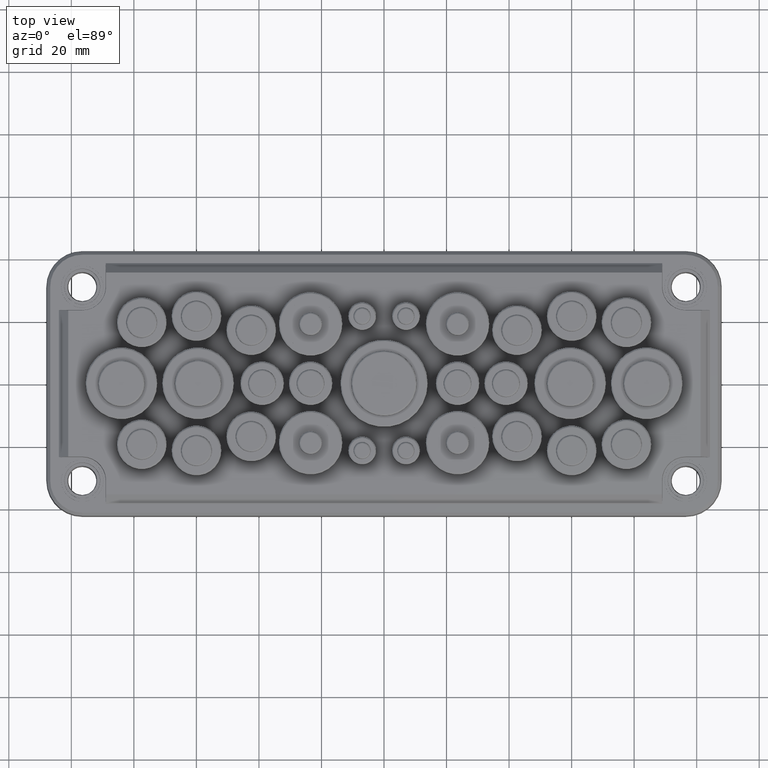
[diagram: clean part render]
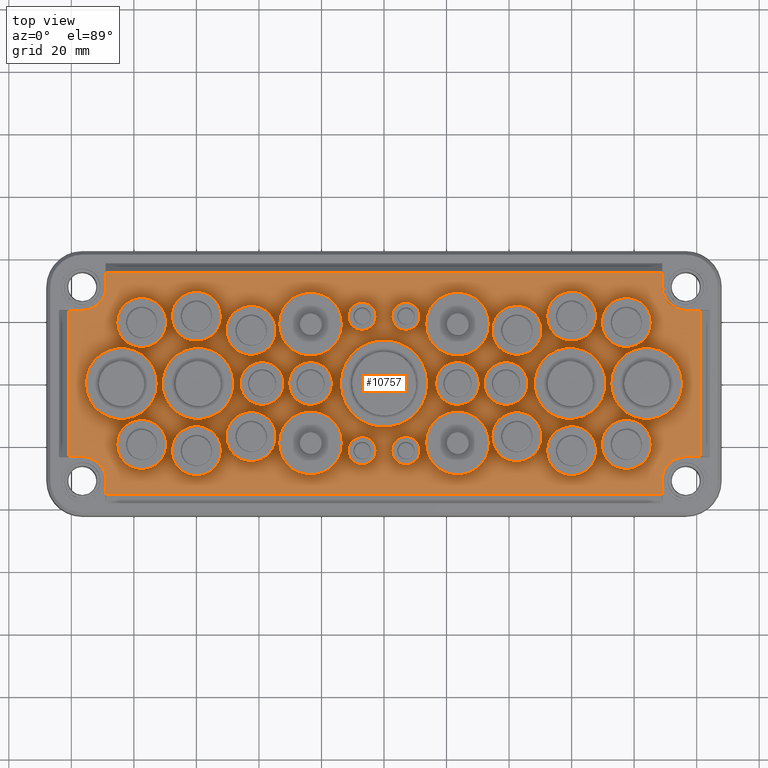
[diagram: same view with one face highlighted and labeled with its STEP entity id]
A machine part, top view. The second image highlights one B-rep face of the part: STEP entity #10757.
In plain terms, the highlighted planar face has unit normal (0, 0, 1).
Its self-contained STEP definition (entity closure, byte-faithful):
#6 = CARTESIAN_POINT ( 'NONE',  ( 85.49999999999998600, -19.50000000000000400, 11.00000000000001100 ) ) ;
#120 = VERTEX_POINT ( 'NONE', #27064 ) ;
#176 = CARTESIAN_POINT ( 'NONE',  ( -2.500000000001279000, 21.50000000000000000, 11.00000000002410200 ) ) ;
#320 = CARTESIAN_POINT ( 'NONE',  ( 88.89523769152477000, -35.49999999999999300, 10.99999999999999600 ) ) ;
#330 = DIRECTION ( 'NONE',  ( -1.000000000000000000, 0.0000000000000000000, 0.0000000000000000000 ) ) ;
#452 = FACE_BOUND ( 'NONE', #22921, .T. ) ;
#455 = DIRECTION ( 'NONE',  ( -1.000000000000000000, 0.0000000000000000000, 0.0000000000000000000 ) ) ;
#505 = EDGE_CURVE ( 'NONE', #41862, #38246, #33028, .T. ) ;
#569 = AXIS2_PLACEMENT_3D ( 'NONE', #26865, #16620, #9666 ) ;
#695 = DIRECTION ( 'NONE',  ( -0.0000000000000000000, -0.0000000000000000000, -1.000000000000000000 ) ) ;
#961 = FACE_BOUND ( 'NONE', #37590, .T. ) ;
#979 = CARTESIAN_POINT ( 'NONE',  ( -33.69999999999999600, 18.99999999999999600, 11.00000000000001100 ) ) ;
#1010 = CARTESIAN_POINT ( 'NONE',  ( -59.99999999999999300, -21.50000000000000400, 11.00000000000001100 ) ) ;
#1024 = CARTESIAN_POINT ( 'NONE',  ( 84.00000000000000000, -3.552713678800500900E-015, 11.00000000000001100 ) ) ;
#1028 = DIRECTION ( 'NONE',  ( -0.0000000000000000000, -0.0000000000000000000, -1.000000000000000000 ) ) ;
#1051 = CARTESIAN_POINT ( 'NONE',  ( -89.00000000000000000, 35.49999999999999300, 11.00000000000000000 ) ) ;
#1083 = VERTEX_POINT ( 'NONE', #29437 ) ;
#1111 = ORIENTED_EDGE ( 'NONE', *, *, #6975, .T. ) ;
#1171 = CIRCLE ( 'NONE', #13528, 7.999999999999992900 ) ;
#1225 = CARTESIAN_POINT ( 'NONE',  ( 52.00000000000002100, -21.50000000000000400, 11.00000000000001100 ) ) ;
#1229 = CARTESIAN_POINT ( 'NONE',  ( -34.49999999999999300, -17.00000000000000400, 11.00000000000001100 ) ) ;
#1353 = ORIENTED_EDGE ( 'NONE', *, *, #10408, .T. ) ;
#1387 = DIRECTION ( 'NONE',  ( -1.000000000000000000, 0.0000000000000000000, 0.0000000000000000000 ) ) ;
#1422 = VERTEX_POINT ( 'NONE', #16751 ) ;
#1536 = FACE_BOUND ( 'NONE', #41769, .T. ) ;
#1559 = DIRECTION ( 'NONE',  ( 0.0000000000000000000, -1.000000000000000000, -0.0000000000000000000 ) ) ;
#1629 = DIRECTION ( 'NONE',  ( -0.0000000000000000000, -0.0000000000000000000, -1.000000000000000000 ) ) ;
#1687 = EDGE_LOOP ( 'NONE', ( #3684, #12026 ) ) ;
#1733 = ORIENTED_EDGE ( 'NONE', *, *, #4140, .T. ) ;
#1772 = DIRECTION ( 'NONE',  ( -1.000000000000000000, 0.0000000000000000000, 0.0000000000000000000 ) ) ;
#1890 = ORIENTED_EDGE ( 'NONE', *, *, #23223, .T. ) ;
#1976 = CARTESIAN_POINT ( 'NONE',  ( 34.50000000000000700, -17.00000000000000400, 11.00000000000001100 ) ) ;
#2088 = CIRCLE ( 'NONE', #36931, 8.000000000000000000 ) ;
#2093 = EDGE_CURVE ( 'NONE', #40856, #41460, #22054, .T. ) ;
#2111 = DIRECTION ( 'NONE',  ( -1.000000000000000000, 0.0000000000000000000, 0.0000000000000000000 ) ) ;
#2196 = DIRECTION ( 'NONE',  ( -0.0000000000000000000, -0.0000000000000000000, -1.000000000000000000 ) ) ;
#2249 = AXIS2_PLACEMENT_3D ( 'NONE', #37717, #6750, #16977 ) ;
#2254 = ORIENTED_EDGE ( 'NONE', *, *, #30531, .T. ) ;
#2279 = DIRECTION ( 'NONE',  ( -1.000000000000000000, 0.0000000000000000000, 0.0000000000000000000 ) ) ;
#2280 = EDGE_LOOP ( 'NONE', ( #1733, #14261 ) ) ;
#2435 = DIRECTION ( 'NONE',  ( -0.0000000000000000000, -0.0000000000000000000, -1.000000000000000000 ) ) ;
#2526 = ORIENTED_EDGE ( 'NONE', *, *, #2093, .T. ) ;
#2575 = CIRCLE ( 'NONE', #31045, 10.20000000000000100 ) ;
#2623 = DIRECTION ( 'NONE',  ( -0.0000000000000000000, -0.0000000000000000000, -1.000000000000000000 ) ) ;
#2636 = FACE_BOUND ( 'NONE', #39481, .T. ) ;
#2832 = EDGE_CURVE ( 'NONE', #4109, #40856, #30184, .T. ) ;
#2852 = DIRECTION ( 'NONE',  ( -0.0000000000000000000, -0.0000000000000000000, -1.000000000000000000 ) ) ;
#2921 = CARTESIAN_POINT ( 'NONE',  ( -89.00000000000000000, 38.49999999999998600, 11.00000000000000000 ) ) ;
#2993 = VERTEX_POINT ( 'NONE', #30492 ) ;
#3039 = DIRECTION ( 'NONE',  ( -1.000000000000000000, 0.0000000000000000000, 0.0000000000000000000 ) ) ;
#3121 = CARTESIAN_POINT ( 'NONE',  ( 33.70000000000001000, 18.99999999999999600, 11.00000000000001100 ) ) ;
#3155 = FACE_BOUND ( 'NONE', #13198, .T. ) ;
#3235 = DIRECTION ( 'NONE',  ( -0.0000000000000000000, -0.0000000000000000000, -1.000000000000000000 ) ) ;
#3260 = DIRECTION ( 'NONE',  ( -0.0000000000000000000, -0.0000000000000000000, -1.000000000000000000 ) ) ;
#3272 = EDGE_CURVE ( 'NONE', #27412, #27673, #41536, .T. ) ;
#3286 = EDGE_CURVE ( 'NONE', #41519, #41449, #37175, .T. ) ;
#3331 = VERTEX_POINT ( 'NONE', #8817 ) ;
#3338 = AXIS2_PLACEMENT_3D ( 'NONE', #7844, #32000, #26050 ) ;
#3383 = CARTESIAN_POINT ( 'NONE',  ( -34.49999999999999300, 16.99999999999999300, 11.00000000000001100 ) ) ;
#3444 = VECTOR ( 'NONE', #25032, 1000.000000000000000 ) ;
#3447 = CARTESIAN_POINT ( 'NONE',  ( -50.49999999999999300, 16.99999999999999300, 11.00000000000001100 ) ) ;
#3489 = EDGE_CURVE ( 'NONE', #34153, #4109, #21399, .T. ) ;
#3504 = CARTESIAN_POINT ( 'NONE',  ( 69.50000000000000000, 19.49999999999999600, 11.00000000000001100 ) ) ;
#3584 = CARTESIAN_POINT ( 'NONE',  ( -6.999999999999992900, 21.50000000000000000, 11.00000000002410200 ) ) ;
#3627 = ORIENTED_EDGE ( 'NONE', *, *, #38011, .T. ) ;
#3646 = ORIENTED_EDGE ( 'NONE', *, *, #31870, .T. ) ;
#3684 = ORIENTED_EDGE ( 'NONE', *, *, #4609, .T. ) ;
#3945 = ORIENTED_EDGE ( 'NONE', *, *, #30386, .T. ) ;
#3984 = AXIS2_PLACEMENT_3D ( 'NONE', #33754, #13062, #37232 ) ;
#4029 = ORIENTED_EDGE ( 'NONE', *, *, #20297, .T. ) ;
#4072 = EDGE_LOOP ( 'NONE', ( #25746, #40636 ) ) ;
#4109 = VERTEX_POINT ( 'NONE', #36473 ) ;
#4123 = DIRECTION ( 'NONE',  ( 1.000000000000000000, 0.0000000000000000000, -0.0000000000000000000 ) ) ;
#4140 = EDGE_CURVE ( 'NONE', #30397, #41780, #17101, .T. ) ;
#4197 = AXIS2_PLACEMENT_3D ( 'NONE', #1024, #18223, #39291 ) ;
#4211 = DIRECTION ( 'NONE',  ( -1.000000000000000000, 0.0000000000000000000, 0.0000000000000000000 ) ) ;
#4228 = FACE_BOUND ( 'NONE', #4072, .T. ) ;
#4304 = CIRCLE ( 'NONE', #29613, 6.999999999999964500 ) ;
#4337 = AXIS2_PLACEMENT_3D ( 'NONE', #39588, #15216, #25768 ) ;
#4510 = ORIENTED_EDGE ( 'NONE', *, *, #39641, .T. ) ;
#4609 = EDGE_CURVE ( 'NONE', #40642, #10333, #34382, .T. ) ;
#4656 = CIRCLE ( 'NONE', #3338, 6.999999999999367600 ) ;
#4715 = CIRCLE ( 'NONE', #37804, 10.20000000000000100 ) ;
#4865 = DIRECTION ( 'NONE',  ( -0.0000000000000000000, -0.0000000000000000000, -1.000000000000000000 ) ) ;
#4872 = ORIENTED_EDGE ( 'NONE', *, *, #39397, .T. ) ;
#4877 = DIRECTION ( 'NONE',  ( -1.000000000000000000, 0.0000000000000000000, 0.0000000000000000000 ) ) ;
#5010 = DIRECTION ( 'NONE',  ( -1.000000000000000000, 0.0000000000000000000, 0.0000000000000000000 ) ) ;
#5076 = VERTEX_POINT ( 'NONE', #6 ) ;
#5091 = CARTESIAN_POINT ( 'NONE',  ( 7.000000000000007100, 21.50000000000000000, 11.00000000002410200 ) ) ;
#5274 = ORIENTED_EDGE ( 'NONE', *, *, #10406, .T. ) ;
#5307 = VERTEX_POINT ( 'NONE', #34191 ) ;
#5345 = AXIS2_PLACEMENT_3D ( 'NONE', #19499, #2623, #19648 ) ;
#5370 = CIRCLE ( 'NONE', #25265, 11.49999999999999600 ) ;
#5675 = DIRECTION ( 'NONE',  ( -1.000000000000000000, 0.0000000000000000000, 0.0000000000000000000 ) ) ;
#5890 = LINE ( 'NONE', #38450, #15611 ) ;
#5987 = ORIENTED_EDGE ( 'NONE', *, *, #29148, .T. ) ;
#6008 = CARTESIAN_POINT ( 'NONE',  ( 23.50000000000000700, -3.552713678800500900E-015, 11.00000000002410200 ) ) ;
#6056 = CIRCLE ( 'NONE', #8099, 7.604762308475246300 ) ;
#6126 = VERTEX_POINT ( 'NONE', #9597 ) ;
#6127 = CARTESIAN_POINT ( 'NONE',  ( 68.00000000000000000, 21.50000000000000000, 11.00000000000001100 ) ) ;
#6137 = EDGE_CURVE ( 'NONE', #39103, #1083, #12589, .T. ) ;
#6138 = ORIENTED_EDGE ( 'NONE', *, *, #20697, .T. ) ;
#6176 = VERTEX_POINT ( 'NONE', #20568 ) ;
#6185 = VERTEX_POINT ( 'NONE', #3121 ) ;
#6194 = CARTESIAN_POINT ( 'NONE',  ( 48.00000000000001400, -3.552713678800500900E-015, 11.00000000000001100 ) ) ;
#6249 = DIRECTION ( 'NONE',  ( -0.0000000000000000000, -0.0000000000000000000, -1.000000000000000000 ) ) ;
#6265 = AXIS2_PLACEMENT_3D ( 'NONE', #22557, #11890, #12354 ) ;
#6425 = FACE_BOUND ( 'NONE', #2280, .T. ) ;
#6457 = DIRECTION ( 'NONE',  ( -1.000000000000000000, 0.0000000000000000000, 0.0000000000000000000 ) ) ;
#6583 = ORIENTED_EDGE ( 'NONE', *, *, #31582, .T. ) ;
#6713 = CIRCLE ( 'NONE', #14415, 7.999999999999992900 ) ;
#6720 = DIRECTION ( 'NONE',  ( -1.000000000000000000, 0.0000000000000000000, 0.0000000000000000000 ) ) ;
#6750 = DIRECTION ( 'NONE',  ( -0.0000000000000000000, -0.0000000000000000000, -1.000000000000000000 ) ) ;
#6804 = EDGE_LOOP ( 'NONE', ( #32018, #1353, #4029, #1890, #13049, #42379, #29006, #29974, #39607, #6857, #32208, #2526, #21432, #39735, #17111, #15931 ) ) ;
#6857 = ORIENTED_EDGE ( 'NONE', *, *, #3489, .T. ) ;
#6975 = EDGE_CURVE ( 'NONE', #8512, #22687, #13672, .T. ) ;
#7048 = CIRCLE ( 'NONE', #21129, 11.49999999999999600 ) ;
#7137 = CARTESIAN_POINT ( 'NONE',  ( -33.69999999999999600, -19.00000000000000400, 11.00000000000001100 ) ) ;
#7264 = CARTESIAN_POINT ( 'NONE',  ( -67.99999999999998600, -21.50000000000000400, 11.00000000000001100 ) ) ;
#7292 = ORIENTED_EDGE ( 'NONE', *, *, #40023, .T. ) ;
#7322 = ORIENTED_EDGE ( 'NONE', *, *, #17288, .T. ) ;
#7372 = CIRCLE ( 'NONE', #22025, 11.49999999999999600 ) ;
#7424 = CARTESIAN_POINT ( 'NONE',  ( -48.00000000000000000, -2.144369859781045100E-015, 11.00000000000001100 ) ) ;
#7717 = EDGE_LOOP ( 'NONE', ( #44445, #44183 ) ) ;
#7844 = CARTESIAN_POINT ( 'NONE',  ( 39.00000000000000700, -3.552713678800500900E-015, 11.00000000002410200 ) ) ;
#7879 = DIRECTION ( 'NONE',  ( -1.000000000000000000, -0.0000000000000000000, 0.0000000000000000000 ) ) ;
#7883 = CARTESIAN_POINT ( 'NONE',  ( 101.2793661559339400, 23.39523769152475600, 11.00000000000000500 ) ) ;
#7904 = VERTEX_POINT ( 'NONE', #42635 ) ;
#7914 = VERTEX_POINT ( 'NONE', #176 ) ;
#7961 = CIRCLE ( 'NONE', #36775, 7.999999999999992900 ) ;
#7978 = CIRCLE ( 'NONE', #35453, 7.999999999999992900 ) ;
#7983 = EDGE_CURVE ( 'NONE', #38072, #15402, #25445, .T. ) ;
#8003 = DIRECTION ( 'NONE',  ( -0.0000000000000000000, -0.0000000000000000000, -1.000000000000000000 ) ) ;
#8012 = FACE_BOUND ( 'NONE', #23615, .T. ) ;
#8099 = AXIS2_PLACEMENT_3D ( 'NONE', #21634, #18047, #34991 ) ;
#8310 = EDGE_CURVE ( 'NONE', #6126, #23392, #6056, .T. ) ;
#8315 = CARTESIAN_POINT ( 'NONE',  ( -23.49999999999999300, -3.552713678800500900E-015, 11.00000000002410200 ) ) ;
#8357 = VECTOR ( 'NONE', #7879, 1000.000000000000000 ) ;
#8373 = CIRCLE ( 'NONE', #35423, 7.604762308475246300 ) ;
#8449 = DIRECTION ( 'NONE',  ( -1.000000000000000000, 0.0000000000000000000, 0.0000000000000000000 ) ) ;
#8512 = VERTEX_POINT ( 'NONE', #35476 ) ;
#8529 = DIRECTION ( 'NONE',  ( -0.0000000000000000000, -0.0000000000000000000, -1.000000000000000000 ) ) ;
#8648 = CARTESIAN_POINT ( 'NONE',  ( -77.50000000000000000, -19.50000000000000400, 11.00000000000001100 ) ) ;
#8773 = CIRCLE ( 'NONE', #32544, 6.999999999999367600 ) ;
#8814 = DIRECTION ( 'NONE',  ( -0.0000000000000000000, -0.0000000000000000000, -1.000000000000000000 ) ) ;
#8817 = CARTESIAN_POINT ( 'NONE',  ( 95.50000000000000000, -2.144369859781045100E-015, 11.00000000000001100 ) ) ;
#8822 = ORIENTED_EDGE ( 'NONE', *, *, #31268, .T. ) ;
#8851 = CARTESIAN_POINT ( 'NONE',  ( 13.30000000000000600, -19.00000000000000400, 11.00000000000001100 ) ) ;
#8989 = CARTESIAN_POINT ( 'NONE',  ( -42.49999999999999300, -17.00000000000000400, 11.00000000000001100 ) ) ;
#9083 = FACE_BOUND ( 'NONE', #16902, .T. ) ;
#9223 = EDGE_CURVE ( 'NONE', #35058, #40730, #4304, .T. ) ;
#9360 = CARTESIAN_POINT ( 'NONE',  ( -77.50000000000000000, 19.49999999999999600, 11.00000000000001100 ) ) ;
#9396 = VERTEX_POINT ( 'NONE', #10184 ) ;
#9426 = VERTEX_POINT ( 'NONE', #23918 ) ;
#9511 = CARTESIAN_POINT ( 'NONE',  ( -23.49999999999999300, -19.00000000000000400, 11.00000000000001100 ) ) ;
#9547 = VERTEX_POINT ( 'NONE', #28010 ) ;
#9569 = DIRECTION ( 'NONE',  ( -1.000000000000000000, 0.0000000000000000000, 0.0000000000000000000 ) ) ;
#9597 = CARTESIAN_POINT ( 'NONE',  ( 96.50000000000000000, 23.39523769152475200, 11.00000000000000500 ) ) ;
#9623 = EDGE_CURVE ( 'NONE', #38246, #41862, #7048, .T. ) ;
#9666 = DIRECTION ( 'NONE',  ( -1.000000000000000000, 0.0000000000000000000, 0.0000000000000000000 ) ) ;
#9676 = DIRECTION ( 'NONE',  ( -1.000000000000000000, 0.0000000000000000000, 0.0000000000000000000 ) ) ;
#9828 = ORIENTED_EDGE ( 'NONE', *, *, #12682, .T. ) ;
#9870 = EDGE_CURVE ( 'NONE', #33696, #14251, #39455, .T. ) ;
#10056 = AXIS2_PLACEMENT_3D ( 'NONE', #31720, #25317, #25180 ) ;
#10151 = FACE_BOUND ( 'NONE', #16404, .T. ) ;
#10170 = AXIS2_PLACEMENT_3D ( 'NONE', #31330, #3260, #20860 ) ;
#10184 = CARTESIAN_POINT ( 'NONE',  ( -51.99999999999999300, 21.50000000000000000, 11.00000000000001100 ) ) ;
#10198 = CARTESIAN_POINT ( 'NONE',  ( 96.50000000000000000, -30.99999999999998900, 11.00000000000001100 ) ) ;
#10333 = VERTEX_POINT ( 'NONE', #37153 ) ;
#10347 = CARTESIAN_POINT ( 'NONE',  ( 85.49999999999998600, 19.49999999999999600, 11.00000000000001100 ) ) ;
#10349 = EDGE_CURVE ( 'NONE', #21736, #9426, #43232, .T. ) ;
#10353 = CIRCLE ( 'NONE', #36680, 6.999999999999964500 ) ;
#10406 = EDGE_CURVE ( 'NONE', #3331, #16371, #5370, .T. ) ;
#10408 = EDGE_CURVE ( 'NONE', #23392, #1422, #5890, .T. ) ;
#10602 = EDGE_CURVE ( 'NONE', #14813, #41269, #27470, .T. ) ;
#10704 = FACE_BOUND ( 'NONE', #31178, .T. ) ;
#10712 = CIRCLE ( 'NONE', #43127, 7.999999999999992900 ) ;
#10757 = ADVANCED_FACE ( 'NONE', ( #43187, #2636, #961, #18231, #25821, #41036, #44793, #8012, #23663, #1536, #16660, #3155, #4228, #39941, #30712, #31799, #43715, #10151, #9083, #28012, #34482, #30188, #15576, #36653, #6425, #452, #10704, #14474, #11245, #38843 ), #30850, .T. ) ;
#10771 = DIRECTION ( 'NONE',  ( -1.000000000000000000, 0.0000000000000000000, 0.0000000000000000000 ) ) ;
#10848 = CARTESIAN_POINT ( 'NONE',  ( 23.50000000000000700, -3.552713678800500900E-015, 11.00000000002410200 ) ) ;
#10865 = AXIS2_PLACEMENT_3D ( 'NONE', #11690, #8529, #18444 ) ;
#10891 = ORIENTED_EDGE ( 'NONE', *, *, #36570, .T. ) ;
#10955 = CARTESIAN_POINT ( 'NONE',  ( 77.50000000000000000, 19.49999999999999600, 11.00000000000001100 ) ) ;
#11135 = ORIENTED_EDGE ( 'NONE', *, *, #32324, .T. ) ;
#11161 = ORIENTED_EDGE ( 'NONE', *, *, #9223, .T. ) ;
#11187 = CARTESIAN_POINT ( 'NONE',  ( -23.49999999999999300, 18.99999999999999600, 11.00000000000001100 ) ) ;
#11245 = FACE_BOUND ( 'NONE', #17303, .T. ) ;
#11467 = CARTESIAN_POINT ( 'NONE',  ( -89.00000000000000000, 23.39523769152475600, 11.00000000000000000 ) ) ;
#11511 = DIRECTION ( 'NONE',  ( -0.0000000000000000000, -0.0000000000000000000, -1.000000000000000000 ) ) ;
#11580 = LINE ( 'NONE', #13824, #35885 ) ;
#11642 = VERTEX_POINT ( 'NONE', #10347 ) ;
#11690 = CARTESIAN_POINT ( 'NONE',  ( 42.50000000000000700, 16.99999999999999300, 11.00000000000001100 ) ) ;
#11740 = ORIENTED_EDGE ( 'NONE', *, *, #12088, .T. ) ;
#11741 = CARTESIAN_POINT ( 'NONE',  ( 34.50000000000000700, 16.99999999999999300, 11.00000000000001100 ) ) ;
#11756 = EDGE_CURVE ( 'NONE', #23789, #19543, #35502, .T. ) ;
#11811 = CARTESIAN_POINT ( 'NONE',  ( -85.49999999999998600, 19.49999999999999600, 11.00000000000001100 ) ) ;
#11832 = CARTESIAN_POINT ( 'NONE',  ( -101.0000000000000000, 38.49999999999998600, 11.00000000000000000 ) ) ;
#11890 = DIRECTION ( 'NONE',  ( -0.0000000000000000000, -0.0000000000000000000, -1.000000000000000000 ) ) ;
#12026 = ORIENTED_EDGE ( 'NONE', *, *, #13742, .T. ) ;
#12070 = EDGE_CURVE ( 'NONE', #16371, #3331, #40943, .T. ) ;
#12088 = EDGE_CURVE ( 'NONE', #9547, #5076, #33320, .T. ) ;
#12148 = EDGE_CURVE ( 'NONE', #7904, #37030, #4656, .T. ) ;
#12216 = CIRCLE ( 'NONE', #36580, 6.999999999999964500 ) ;
#12287 = VERTEX_POINT ( 'NONE', #23930 ) ;
#12324 = ORIENTED_EDGE ( 'NONE', *, *, #13470, .T. ) ;
#12354 = DIRECTION ( 'NONE',  ( -1.000000000000000000, 0.0000000000000000000, 0.0000000000000000000 ) ) ;
#12546 = CARTESIAN_POINT ( 'NONE',  ( 45.99999999999937500, -2.695460919397431000E-015, 11.00000000002410200 ) ) ;
#12565 = DIRECTION ( 'NONE',  ( 0.0000000000000000000, -1.000000000000000000, -0.0000000000000000000 ) ) ;
#12589 = LINE ( 'NONE', #33629, #39089 ) ;
#12612 = CARTESIAN_POINT ( 'NONE',  ( 88.89523769152477000, 38.49999999999998600, 11.00000000000000000 ) ) ;
#12648 = LINE ( 'NONE', #31428, #34770 ) ;
#12667 = CARTESIAN_POINT ( 'NONE',  ( -77.50000000000000000, 19.49999999999999600, 11.00000000000001100 ) ) ;
#12682 = EDGE_CURVE ( 'NONE', #23409, #12287, #32749, .T. ) ;
#12823 = CARTESIAN_POINT ( 'NONE',  ( -69.50000000000000000, -19.50000000000000400, 11.00000000000001100 ) ) ;
#12937 = AXIS2_PLACEMENT_3D ( 'NONE', #15603, #33294, #32980 ) ;
#12956 = DIRECTION ( 'NONE',  ( -0.0000000000000000000, -0.0000000000000000000, -1.000000000000000000 ) ) ;
#13049 = ORIENTED_EDGE ( 'NONE', *, *, #31067, .T. ) ;
#13062 = DIRECTION ( 'NONE',  ( -0.0000000000000000000, -0.0000000000000000000, -1.000000000000000000 ) ) ;
#13198 = EDGE_LOOP ( 'NONE', ( #16896, #38619 ) ) ;
#13324 = EDGE_LOOP ( 'NONE', ( #14329, #3646 ) ) ;
#13404 = DIRECTION ( 'NONE',  ( -0.0000000000000000000, -0.0000000000000000000, -1.000000000000000000 ) ) ;
#13470 = EDGE_CURVE ( 'NONE', #22687, #8512, #40008, .T. ) ;
#13528 = AXIS2_PLACEMENT_3D ( 'NONE', #9360, #29771, #16027 ) ;
#13550 = DIRECTION ( 'NONE',  ( 1.000000000000000000, 0.0000000000000000000, 0.0000000000000000000 ) ) ;
#13615 = LINE ( 'NONE', #24767, #34166 ) ;
#13630 = CIRCLE ( 'NONE', #14097, 4.499999999998060200 ) ;
#13672 = CIRCLE ( 'NONE', #28870, 4.499999999998713900 ) ;
#13730 = VERTEX_POINT ( 'NONE', #11811 ) ;
#13742 = EDGE_CURVE ( 'NONE', #10333, #40642, #10353, .T. ) ;
#13804 = EDGE_CURVE ( 'NONE', #44128, #13730, #1171, .T. ) ;
#13824 = CARTESIAN_POINT ( 'NONE',  ( -89.00000000000000000, 23.39523769152475600, 11.00000000000000000 ) ) ;
#13834 = ORIENTED_EDGE ( 'NONE', *, *, #21061, .T. ) ;
#13862 = AXIS2_PLACEMENT_3D ( 'NONE', #12667, #1629, #25906 ) ;
#13865 = EDGE_CURVE ( 'NONE', #42420, #38666, #13630, .T. ) ;
#13867 = DIRECTION ( 'NONE',  ( -0.0000000000000000000, -0.0000000000000000000, -1.000000000000000000 ) ) ;
#14043 = EDGE_CURVE ( 'NONE', #41329, #7914, #44433, .T. ) ;
#14097 = AXIS2_PLACEMENT_3D ( 'NONE', #44749, #20626, #3039 ) ;
#14177 = EDGE_CURVE ( 'NONE', #13730, #44128, #29785, .T. ) ;
#14251 = VERTEX_POINT ( 'NONE', #12823 ) ;
#14261 = ORIENTED_EDGE ( 'NONE', *, *, #39985, .T. ) ;
#14284 = CARTESIAN_POINT ( 'NONE',  ( -96.50000000000000000, 31.00000000000000000, 11.00000000000001100 ) ) ;
#14327 = EDGE_CURVE ( 'NONE', #41460, #39103, #34143, .T. ) ;
#14329 = ORIENTED_EDGE ( 'NONE', *, *, #21811, .T. ) ;
#14354 = AXIS2_PLACEMENT_3D ( 'NONE', #24447, #17372, #38263 ) ;
#14415 = AXIS2_PLACEMENT_3D ( 'NONE', #32872, #33172, #15490 ) ;
#14474 = FACE_BOUND ( 'NONE', #21148, .T. ) ;
#14552 = AXIS2_PLACEMENT_3D ( 'NONE', #8989, #29968, #5675 ) ;
#14600 = DIRECTION ( 'NONE',  ( -0.0000000000000000000, -0.0000000000000000000, -1.000000000000000000 ) ) ;
#14627 = DIRECTION ( 'NONE',  ( -0.0000000000000000000, -0.0000000000000000000, -1.000000000000000000 ) ) ;
#14813 = VERTEX_POINT ( 'NONE', #20885 ) ;
#14878 = CARTESIAN_POINT ( 'NONE',  ( -11.49999999999870700, 21.50000000000000000, 11.00000000002410200 ) ) ;
#15171 = EDGE_LOOP ( 'NONE', ( #9828, #4510 ) ) ;
#15216 = DIRECTION ( 'NONE',  ( -0.0000000000000000000, -0.0000000000000000000, -1.000000000000000000 ) ) ;
#15307 = LINE ( 'NONE', #11467, #3444 ) ;
#15402 = VERTEX_POINT ( 'NONE', #1225 ) ;
#15466 = DIRECTION ( 'NONE',  ( -1.000000000000000000, 0.0000000000000000000, 0.0000000000000000000 ) ) ;
#15469 = CARTESIAN_POINT ( 'NONE',  ( 33.70000000000001000, -19.00000000000000400, 11.00000000000001100 ) ) ;
#15490 = DIRECTION ( 'NONE',  ( -1.000000000000000000, 0.0000000000000000000, 0.0000000000000000000 ) ) ;
#15576 = FACE_BOUND ( 'NONE', #19780, .T. ) ;
#15603 = CARTESIAN_POINT ( 'NONE',  ( -42.49999999999999300, -17.00000000000000400, 11.00000000000001100 ) ) ;
#15611 = VECTOR ( 'NONE', #31783, 1000.000000000000000 ) ;
#15720 = CARTESIAN_POINT ( 'NONE',  ( 71.00000000000001400, -2.144369859781045100E-015, 11.00000000000001100 ) ) ;
#15873 = CIRCLE ( 'NONE', #10865, 8.000000000000000000 ) ;
#15901 = CARTESIAN_POINT ( 'NONE',  ( -59.99999999999999300, -21.50000000000000400, 11.00000000000001100 ) ) ;
#15931 = ORIENTED_EDGE ( 'NONE', *, *, #36161, .T. ) ;
#15961 = DIRECTION ( 'NONE',  ( -1.000000000000000000, 0.0000000000000000000, 0.0000000000000000000 ) ) ;
#16027 = DIRECTION ( 'NONE',  ( -1.000000000000000000, 0.0000000000000000000, 0.0000000000000000000 ) ) ;
#16047 = VERTEX_POINT ( 'NONE', #37827 ) ;
#16098 = VECTOR ( 'NONE', #12565, 1000.000000000000000 ) ;
#16371 = VERTEX_POINT ( 'NONE', #36722 ) ;
#16404 = EDGE_LOOP ( 'NONE', ( #18433, #5274 ) ) ;
#16602 = CIRCLE ( 'NONE', #4337, 11.49999999999999600 ) ;
#16620 = DIRECTION ( 'NONE',  ( -0.0000000000000000000, -0.0000000000000000000, -1.000000000000000000 ) ) ;
#16660 = FACE_BOUND ( 'NONE', #25080, .T. ) ;
#16751 = CARTESIAN_POINT ( 'NONE',  ( 88.89523769152477000, 35.49999999999999300, 11.00000000000000000 ) ) ;
#16771 = CARTESIAN_POINT ( 'NONE',  ( -59.50000000000000000, -3.552713678800500900E-015, 11.00000000000001100 ) ) ;
#16819 = DIRECTION ( 'NONE',  ( 0.0000000000000000000, -0.0000000000000000000, -1.000000000000000000 ) ) ;
#16896 = ORIENTED_EDGE ( 'NONE', *, *, #3272, .T. ) ;
#16902 = EDGE_LOOP ( 'NONE', ( #43515, #26215 ) ) ;
#16977 = DIRECTION ( 'NONE',  ( -1.000000000000000000, 0.0000000000000000000, 0.0000000000000000000 ) ) ;
#17017 = VERTEX_POINT ( 'NONE', #28732 ) ;
#17065 = ORIENTED_EDGE ( 'NONE', *, *, #12148, .T. ) ;
#17101 = CIRCLE ( 'NONE', #14552, 8.000000000000000000 ) ;
#17111 = ORIENTED_EDGE ( 'NONE', *, *, #38355, .T. ) ;
#17154 = CIRCLE ( 'NONE', #37188, 10.20000000000000100 ) ;
#17288 = EDGE_CURVE ( 'NONE', #6185, #39150, #2575, .T. ) ;
#17303 = EDGE_LOOP ( 'NONE', ( #10891, #32985 ) ) ;
#17311 = AXIS2_PLACEMENT_3D ( 'NONE', #21037, #17610, #21342 ) ;
#17372 = DIRECTION ( 'NONE',  ( -0.0000000000000000000, -0.0000000000000000000, -1.000000000000000000 ) ) ;
#17610 = DIRECTION ( 'NONE',  ( -0.0000000000000000000, -0.0000000000000000000, -1.000000000000000000 ) ) ;
#17624 = AXIS2_PLACEMENT_3D ( 'NONE', #11187, #24879, #330 ) ;
#17645 = DIRECTION ( 'NONE',  ( -0.0000000000000000000, -0.0000000000000000000, -1.000000000000000000 ) ) ;
#17743 = DIRECTION ( 'NONE',  ( -0.0000000000000000000, 0.0000000000000000000, -1.000000000000000000 ) ) ;
#17803 = CARTESIAN_POINT ( 'NONE',  ( 68.00000000000000000, -21.50000000000000400, 11.00000000000001100 ) ) ;
#17816 = CARTESIAN_POINT ( 'NONE',  ( 50.50000000000000700, 16.99999999999999300, 11.00000000000001100 ) ) ;
#17857 = DIRECTION ( 'NONE',  ( -0.0000000000000000000, -0.0000000000000000000, -1.000000000000000000 ) ) ;
#18047 = DIRECTION ( 'NONE',  ( -0.0000000000000000000, -0.0000000000000000000, -1.000000000000000000 ) ) ;
#18087 = DIRECTION ( 'NONE',  ( -1.000000000000000000, 0.0000000000000000000, 0.0000000000000000000 ) ) ;
#18096 = CARTESIAN_POINT ( 'NONE',  ( 60.00000000000001400, -21.50000000000000400, 11.00000000000001100 ) ) ;
#18223 = DIRECTION ( 'NONE',  ( -0.0000000000000000000, -0.0000000000000000000, -1.000000000000000000 ) ) ;
#18231 = FACE_BOUND ( 'NONE', #23519, .T. ) ;
#18433 = ORIENTED_EDGE ( 'NONE', *, *, #12070, .T. ) ;
#18444 = DIRECTION ( 'NONE',  ( -1.000000000000000000, 0.0000000000000000000, 0.0000000000000000000 ) ) ;
#18465 = ORIENTED_EDGE ( 'NONE', *, *, #25133, .T. ) ;
#18590 = CARTESIAN_POINT ( 'NONE',  ( 59.50000000000001400, -3.552713678800500900E-015, 11.00000000000001100 ) ) ;
#18685 = CARTESIAN_POINT ( 'NONE',  ( -6.999999999999992900, 21.50000000000000000, 11.00000000002410200 ) ) ;
#18810 = AXIS2_PLACEMENT_3D ( 'NONE', #3584, #695, #24824 ) ;
#18918 = DIRECTION ( 'NONE',  ( -0.0000000000000000000, -0.0000000000000000000, -1.000000000000000000 ) ) ;
#19246 = DIRECTION ( 'NONE',  ( -0.0000000000000000000, -0.0000000000000000000, -1.000000000000000000 ) ) ;
#19499 = CARTESIAN_POINT ( 'NONE',  ( -77.50000000000000000, -19.50000000000000400, 11.00000000000001100 ) ) ;
#19543 = VERTEX_POINT ( 'NONE', #7137 ) ;
#19645 = VERTEX_POINT ( 'NONE', #7883 ) ;
#19648 = DIRECTION ( 'NONE',  ( -1.000000000000000000, 0.0000000000000000000, 0.0000000000000000000 ) ) ;
#19655 = CARTESIAN_POINT ( 'NONE',  ( 60.00000000000001400, 21.50000000000000000, 11.00000000000001100 ) ) ;
#19753 = DIRECTION ( 'NONE',  ( 1.000000000000000000, 0.0000000000000000000, -0.0000000000000000000 ) ) ;
#19780 = EDGE_LOOP ( 'NONE', ( #4872, #7292 ) ) ;
#19818 = CARTESIAN_POINT ( 'NONE',  ( 11.49999999999806700, -21.50000000000000400, 11.00000000002410200 ) ) ;
#19867 = DIRECTION ( 'NONE',  ( -1.000000000000000000, 0.0000000000000000000, 0.0000000000000000000 ) ) ;
#20152 = ORIENTED_EDGE ( 'NONE', *, *, #14177, .T. ) ;
#20157 = CARTESIAN_POINT ( 'NONE',  ( -42.49999999999999300, 16.99999999999999300, 11.00000000000001100 ) ) ;
#20214 = ORIENTED_EDGE ( 'NONE', *, *, #13865, .T. ) ;
#20297 = EDGE_CURVE ( 'NONE', #1422, #16047, #24505, .T. ) ;
#20367 = AXIS2_PLACEMENT_3D ( 'NONE', #35907, #8003, #25007 ) ;
#20568 = CARTESIAN_POINT ( 'NONE',  ( -96.50000000000000000, 23.39523769152475200, 11.00000000000000500 ) ) ;
#20609 = AXIS2_PLACEMENT_3D ( 'NONE', #2921, #30708, #23441 ) ;
#20626 = DIRECTION ( 'NONE',  ( -0.0000000000000000000, -0.0000000000000000000, -1.000000000000000000 ) ) ;
#20697 = EDGE_CURVE ( 'NONE', #32073, #5307, #35313, .T. ) ;
#20856 = CARTESIAN_POINT ( 'NONE',  ( 84.00000000000000000, -3.552713678800500900E-015, 11.00000000000001100 ) ) ;
#20860 = DIRECTION ( 'NONE',  ( -1.000000000000000000, 0.0000000000000000000, 0.0000000000000000000 ) ) ;
#20885 = CARTESIAN_POINT ( 'NONE',  ( -101.0000000000000000, 23.39523769152476600, 11.00000000000000000 ) ) ;
#20888 = AXIS2_PLACEMENT_3D ( 'NONE', #26296, #18918, #43151 ) ;
#20913 = CIRCLE ( 'NONE', #24639, 4.499999999998060200 ) ;
#21024 = ORIENTED_EDGE ( 'NONE', *, *, #39568, .T. ) ;
#21037 = CARTESIAN_POINT ( 'NONE',  ( 6.938893903907228400E-015, -3.552713678800500900E-015, 11.00000000000001100 ) ) ;
#21061 = EDGE_CURVE ( 'NONE', #5076, #9547, #6713, .T. ) ;
#21129 = AXIS2_PLACEMENT_3D ( 'NONE', #42096, #17857, #38919 ) ;
#21148 = EDGE_LOOP ( 'NONE', ( #28152, #21024 ) ) ;
#21325 = CARTESIAN_POINT ( 'NONE',  ( -67.99999999999998600, 21.50000000000000000, 11.00000000000001100 ) ) ;
#21342 = DIRECTION ( 'NONE',  ( -1.000000000000000000, 0.0000000000000000000, 0.0000000000000000000 ) ) ;
#21399 = LINE ( 'NONE', #33258, #16098 ) ;
#21411 = EDGE_LOOP ( 'NONE', ( #3945, #29539 ) ) ;
#21432 = ORIENTED_EDGE ( 'NONE', *, *, #14327, .T. ) ;
#21634 = CARTESIAN_POINT ( 'NONE',  ( 96.50000000000000000, 31.00000000000000000, 11.00000000000001100 ) ) ;
#21658 = DIRECTION ( 'NONE',  ( -0.0000000000000000000, -0.0000000000000000000, -1.000000000000000000 ) ) ;
#21735 = EDGE_CURVE ( 'NONE', #38666, #42420, #34720, .T. ) ;
#21736 = VERTEX_POINT ( 'NONE', #7424 ) ;
#21811 = EDGE_CURVE ( 'NONE', #22197, #31821, #8773, .T. ) ;
#21977 = DIRECTION ( 'NONE',  ( -1.000000000000000000, 0.0000000000000000000, 0.0000000000000000000 ) ) ;
#22025 = AXIS2_PLACEMENT_3D ( 'NONE', #16771, #6249, #9676 ) ;
#22054 = LINE ( 'NONE', #12612, #41625 ) ;
#22123 = VERTEX_POINT ( 'NONE', #41402 ) ;
#22146 = CARTESIAN_POINT ( 'NONE',  ( 88.89523769152477000, 30.99999999999999600, 11.00000000000000500 ) ) ;
#22168 = VERTEX_POINT ( 'NONE', #11741 ) ;
#22186 = EDGE_CURVE ( 'NONE', #37260, #32099, #44130, .T. ) ;
#22197 = VERTEX_POINT ( 'NONE', #25580 ) ;
#22376 = VERTEX_POINT ( 'NONE', #25426 ) ;
#22502 = DIRECTION ( 'NONE',  ( -0.0000000000000000000, -0.0000000000000000000, -1.000000000000000000 ) ) ;
#22557 = CARTESIAN_POINT ( 'NONE',  ( 42.50000000000000700, 16.99999999999999300, 11.00000000000001100 ) ) ;
#22687 = VERTEX_POINT ( 'NONE', #37548 ) ;
#22816 = DIRECTION ( 'NONE',  ( -0.0000000000000000000, -0.0000000000000000000, -1.000000000000000000 ) ) ;
#22827 = EDGE_CURVE ( 'NONE', #6176, #14813, #11580, .T. ) ;
#22921 = EDGE_LOOP ( 'NONE', ( #25280, #34785 ) ) ;
#23010 = AXIS2_PLACEMENT_3D ( 'NONE', #15901, #8814, #26443 ) ;
#23037 = DIRECTION ( 'NONE',  ( -1.000000000000000000, 0.0000000000000000000, 0.0000000000000000000 ) ) ;
#23094 = EDGE_LOOP ( 'NONE', ( #23904, #29319 ) ) ;
#23175 = CIRCLE ( 'NONE', #6265, 8.000000000000000000 ) ;
#23189 = DIRECTION ( 'NONE',  ( -0.0000000000000000000, -0.0000000000000000000, -1.000000000000000000 ) ) ;
#23223 = EDGE_CURVE ( 'NONE', #16047, #17017, #12648, .T. ) ;
#23380 = CIRCLE ( 'NONE', #32325, 7.999999999999992900 ) ;
#23392 = VERTEX_POINT ( 'NONE', #22146 ) ;
#23409 = VERTEX_POINT ( 'NONE', #1976 ) ;
#23441 = DIRECTION ( 'NONE',  ( 1.000000000000000000, 0.0000000000000000000, -0.0000000000000000000 ) ) ;
#23442 = EDGE_CURVE ( 'NONE', #22123, #34153, #28264, .T. ) ;
#23519 = EDGE_LOOP ( 'NONE', ( #1111, #12324 ) ) ;
#23615 = EDGE_LOOP ( 'NONE', ( #17065, #28828 ) ) ;
#23650 = ORIENTED_EDGE ( 'NONE', *, *, #21735, .T. ) ;
#23663 = FACE_BOUND ( 'NONE', #1687, .T. ) ;
#23789 = VERTEX_POINT ( 'NONE', #38961 ) ;
#23904 = ORIENTED_EDGE ( 'NONE', *, *, #9623, .T. ) ;
#23918 = CARTESIAN_POINT ( 'NONE',  ( -71.00000000000000000, -3.552713678800500900E-015, 11.00000000000001100 ) ) ;
#23930 = CARTESIAN_POINT ( 'NONE',  ( 50.50000000000000700, -17.00000000000000400, 11.00000000000001100 ) ) ;
#24044 = AXIS2_PLACEMENT_3D ( 'NONE', #1010, #14600, #4211 ) ;
#24079 = EDGE_CURVE ( 'NONE', #9396, #31020, #33661, .T. ) ;
#24160 = CIRCLE ( 'NONE', #569, 6.999999999999367600 ) ;
#24353 = EDGE_LOOP ( 'NONE', ( #8822, #42110 ) ) ;
#24447 = CARTESIAN_POINT ( 'NONE',  ( 23.50000000000000700, -19.00000000000000400, 11.00000000000001100 ) ) ;
#24505 = LINE ( 'NONE', #1051, #8357 ) ;
#24538 = EDGE_CURVE ( 'NONE', #41588, #28795, #41757, .T. ) ;
#24639 = AXIS2_PLACEMENT_3D ( 'NONE', #26291, #22502, #33437 ) ;
#24767 = CARTESIAN_POINT ( 'NONE',  ( -89.00000000000000000, -23.39523769152477300, 11.00000000000000000 ) ) ;
#24824 = DIRECTION ( 'NONE',  ( -1.000000000000000000, 0.0000000000000000000, 0.0000000000000000000 ) ) ;
#24879 = DIRECTION ( 'NONE',  ( 0.0000000000000000000, -0.0000000000000000000, -1.000000000000000000 ) ) ;
#24896 = ORIENTED_EDGE ( 'NONE', *, *, #40910, .T. ) ;
#24954 = AXIS2_PLACEMENT_3D ( 'NONE', #28090, #14627, #18087 ) ;
#25007 = DIRECTION ( 'NONE',  ( -1.000000000000000000, 0.0000000000000000000, 0.0000000000000000000 ) ) ;
#25032 = DIRECTION ( 'NONE',  ( -1.000000000000000000, -0.0000000000000000000, 0.0000000000000000000 ) ) ;
#25080 = EDGE_LOOP ( 'NONE', ( #6583, #7322 ) ) ;
#25116 = AXIS2_PLACEMENT_3D ( 'NONE', #18096, #25933, #2111 ) ;
#25133 = EDGE_CURVE ( 'NONE', #5307, #32073, #38441, .T. ) ;
#25180 = DIRECTION ( 'NONE',  ( -1.000000000000000000, 0.0000000000000000000, 0.0000000000000000000 ) ) ;
#25265 = AXIS2_PLACEMENT_3D ( 'NONE', #20856, #28289, #10771 ) ;
#25280 = ORIENTED_EDGE ( 'NONE', *, *, #9870, .T. ) ;
#25317 = DIRECTION ( 'NONE',  ( -0.0000000000000000000, -0.0000000000000000000, -1.000000000000000000 ) ) ;
#25383 = AXIS2_PLACEMENT_3D ( 'NONE', #18590, #11511, #4877 ) ;
#25426 = CARTESIAN_POINT ( 'NONE',  ( -13.29999999999999400, 18.99999999999999600, 11.00000000000001100 ) ) ;
#25445 = CIRCLE ( 'NONE', #25116, 7.999999999999992900 ) ;
#25501 = CARTESIAN_POINT ( 'NONE',  ( -23.49999999999999300, -19.00000000000000400, 11.00000000000001100 ) ) ;
#25575 = AXIS2_PLACEMENT_3D ( 'NONE', #34288, #30950, #34868 ) ;
#25580 = CARTESIAN_POINT ( 'NONE',  ( -30.49999999999936100, -3.552713678800500900E-015, 11.00000000002410200 ) ) ;
#25725 = CARTESIAN_POINT ( 'NONE',  ( 52.00000000000002100, 21.50000000000000000, 11.00000000000001100 ) ) ;
#25746 = ORIENTED_EDGE ( 'NONE', *, *, #39109, .T. ) ;
#25768 = DIRECTION ( 'NONE',  ( -1.000000000000000000, 0.0000000000000000000, 0.0000000000000000000 ) ) ;
#25821 = FACE_BOUND ( 'NONE', #37189, .T. ) ;
#25906 = DIRECTION ( 'NONE',  ( -1.000000000000000000, 0.0000000000000000000, 0.0000000000000000000 ) ) ;
#25933 = DIRECTION ( 'NONE',  ( -0.0000000000000000000, -0.0000000000000000000, -1.000000000000000000 ) ) ;
#26021 = CARTESIAN_POINT ( 'NONE',  ( 88.89523769152477000, -30.99999999999999300, 11.00000000000000500 ) ) ;
#26050 = DIRECTION ( 'NONE',  ( -1.000000000000000000, 0.0000000000000000000, 0.0000000000000000000 ) ) ;
#26173 = ORIENTED_EDGE ( 'NONE', *, *, #32189, .T. ) ;
#26215 = ORIENTED_EDGE ( 'NONE', *, *, #32322, .T. ) ;
#26291 = CARTESIAN_POINT ( 'NONE',  ( 7.000000000000007100, 21.50000000000000000, 11.00000000002410200 ) ) ;
#26296 = CARTESIAN_POINT ( 'NONE',  ( 77.50000000000000000, 19.49999999999999600, 11.00000000000001100 ) ) ;
#26375 = VECTOR ( 'NONE', #1559, 1000.000000000000000 ) ;
#26443 = DIRECTION ( 'NONE',  ( -1.000000000000000000, 0.0000000000000000000, 0.0000000000000000000 ) ) ;
#26453 = AXIS2_PLACEMENT_3D ( 'NONE', #44652, #3235, #6720 ) ;
#26537 = DIRECTION ( 'NONE',  ( 1.000000000000000000, 1.824881205339993100E-015, 0.0000000000000000000 ) ) ;
#26648 = EDGE_LOOP ( 'NONE', ( #26173, #24896 ) ) ;
#26865 = CARTESIAN_POINT ( 'NONE',  ( -23.49999999999999300, -3.552713678800500900E-015, 11.00000000002410200 ) ) ;
#26909 = DIRECTION ( 'NONE',  ( -0.0000000000000000000, 1.000000000000000000, 0.0000000000000000000 ) ) ;
#27064 = CARTESIAN_POINT ( 'NONE',  ( -51.99999999999999300, -21.50000000000000400, 11.00000000000001100 ) ) ;
#27103 = AXIS2_PLACEMENT_3D ( 'NONE', #10198, #41671, #13550 ) ;
#27412 = VERTEX_POINT ( 'NONE', #8851 ) ;
#27470 = LINE ( 'NONE', #11832, #26375 ) ;
#27673 = VERTEX_POINT ( 'NONE', #15469 ) ;
#28010 = CARTESIAN_POINT ( 'NONE',  ( 69.50000000000000000, -19.50000000000000400, 11.00000000000001100 ) ) ;
#28012 = FACE_BOUND ( 'NONE', #34883, .T. ) ;
#28060 = CARTESIAN_POINT ( 'NONE',  ( -88.89523769152475600, -31.00000000000001400, 11.00000000000000500 ) ) ;
#28090 = CARTESIAN_POINT ( 'NONE',  ( 7.000000000000007100, -21.50000000000000400, 11.00000000002410200 ) ) ;
#28152 = ORIENTED_EDGE ( 'NONE', *, *, #35791, .T. ) ;
#28264 = CIRCLE ( 'NONE', #38992, 7.604762308475246300 ) ;
#28289 = DIRECTION ( 'NONE',  ( -0.0000000000000000000, -0.0000000000000000000, -1.000000000000000000 ) ) ;
#28329 = CARTESIAN_POINT ( 'NONE',  ( -101.0000000000000000, -23.39523769152477300, 11.00000000000000000 ) ) ;
#28674 = EDGE_CURVE ( 'NONE', #27673, #27412, #41007, .T. ) ;
#28732 = CARTESIAN_POINT ( 'NONE',  ( -88.89523769152475600, 31.00000000000000000, 11.00000000000000500 ) ) ;
#28795 = VERTEX_POINT ( 'NONE', #3447 ) ;
#28828 = ORIENTED_EDGE ( 'NONE', *, *, #42676, .T. ) ;
#28870 = AXIS2_PLACEMENT_3D ( 'NONE', #43304, #31616, #15466 ) ;
#29006 = ORIENTED_EDGE ( 'NONE', *, *, #10602, .T. ) ;
#29129 = CARTESIAN_POINT ( 'NONE',  ( 6.938893903907228400E-015, -3.552713678800500900E-015, 11.00000000000001100 ) ) ;
#29148 = EDGE_CURVE ( 'NONE', #41449, #41519, #7978, .T. ) ;
#29198 = EDGE_CURVE ( 'NONE', #31172, #22376, #4715, .T. ) ;
#29213 = CARTESIAN_POINT ( 'NONE',  ( 23.50000000000000700, -19.00000000000000400, 11.00000000000001100 ) ) ;
#29319 = ORIENTED_EDGE ( 'NONE', *, *, #505, .T. ) ;
#29437 = CARTESIAN_POINT ( 'NONE',  ( 101.2793661559339400, -23.39523769152475600, 11.00000000000000500 ) ) ;
#29539 = ORIENTED_EDGE ( 'NONE', *, *, #10349, .T. ) ;
#29613 = AXIS2_PLACEMENT_3D ( 'NONE', #6008, #23189, #36956 ) ;
#29686 = DIRECTION ( 'NONE',  ( -1.000000000000000000, 0.0000000000000000000, 0.0000000000000000000 ) ) ;
#29716 = DIRECTION ( 'NONE',  ( -0.0000000000000000000, -0.0000000000000000000, -1.000000000000000000 ) ) ;
#29771 = DIRECTION ( 'NONE',  ( -0.0000000000000000000, -0.0000000000000000000, -1.000000000000000000 ) ) ;
#29774 = DIRECTION ( 'NONE',  ( -1.000000000000000000, 0.0000000000000000000, 0.0000000000000000000 ) ) ;
#29785 = CIRCLE ( 'NONE', #13862, 7.999999999999992900 ) ;
#29899 = CARTESIAN_POINT ( 'NONE',  ( 13.30000000000000600, 18.99999999999999600, 11.00000000000001100 ) ) ;
#29968 = DIRECTION ( 'NONE',  ( -0.0000000000000000000, -0.0000000000000000000, -1.000000000000000000 ) ) ;
#29974 = ORIENTED_EDGE ( 'NONE', *, *, #40580, .T. ) ;
#30050 = CARTESIAN_POINT ( 'NONE',  ( -59.50000000000000000, -3.552713678800500900E-015, 11.00000000000001100 ) ) ;
#30184 = LINE ( 'NONE', #37006, #35022 ) ;
#30188 = FACE_BOUND ( 'NONE', #7717, .T. ) ;
#30386 = EDGE_CURVE ( 'NONE', #9426, #21736, #7372, .T. ) ;
#30397 = VERTEX_POINT ( 'NONE', #34021 ) ;
#30492 = CARTESIAN_POINT ( 'NONE',  ( -95.50000000000000000, -3.552713678800500900E-015, 11.00000000000001100 ) ) ;
#30493 = VERTEX_POINT ( 'NONE', #7264 ) ;
#30531 = EDGE_CURVE ( 'NONE', #40730, #35058, #12216, .T. ) ;
#30708 = DIRECTION ( 'NONE',  ( 0.0000000000000000000, 0.0000000000000000000, 1.000000000000000000 ) ) ;
#30712 = FACE_BOUND ( 'NONE', #23094, .T. ) ;
#30808 = CIRCLE ( 'NONE', #10056, 11.49999999999999600 ) ;
#30850 = PLANE ( 'NONE',  #20609 ) ;
#30950 = DIRECTION ( 'NONE',  ( -0.0000000000000000000, -0.0000000000000000000, -1.000000000000000000 ) ) ;
#31020 = VERTEX_POINT ( 'NONE', #21325 ) ;
#31045 = AXIS2_PLACEMENT_3D ( 'NONE', #39296, #1028, #42613 ) ;
#31067 = EDGE_CURVE ( 'NONE', #17017, #6176, #8373, .T. ) ;
#31172 = VERTEX_POINT ( 'NONE', #979 ) ;
#31178 = EDGE_LOOP ( 'NONE', ( #20152, #36541 ) ) ;
#31231 = DIRECTION ( 'NONE',  ( -0.0000000000000000000, 1.000000000000000000, 0.0000000000000000000 ) ) ;
#31268 = EDGE_CURVE ( 'NONE', #28795, #41588, #41395, .T. ) ;
#31330 = CARTESIAN_POINT ( 'NONE',  ( 39.00000000000000700, -3.552713678800500900E-015, 11.00000000002410200 ) ) ;
#31428 = CARTESIAN_POINT ( 'NONE',  ( -88.89523769152475600, 38.49999999999998600, 11.00000000000000000 ) ) ;
#31544 = ORIENTED_EDGE ( 'NONE', *, *, #43019, .T. ) ;
#31582 = EDGE_CURVE ( 'NONE', #39150, #6185, #17154, .T. ) ;
#31616 = DIRECTION ( 'NONE',  ( -0.0000000000000000000, -0.0000000000000000000, -1.000000000000000000 ) ) ;
#31684 = AXIS2_PLACEMENT_3D ( 'NONE', #5091, #36506, #32881 ) ;
#31720 = CARTESIAN_POINT ( 'NONE',  ( -84.00000000000000000, -3.552713678800500900E-015, 11.00000000000001100 ) ) ;
#31783 = DIRECTION ( 'NONE',  ( -0.0000000000000000000, 1.000000000000000000, 0.0000000000000000000 ) ) ;
#31799 = FACE_BOUND ( 'NONE', #26648, .T. ) ;
#31821 = VERTEX_POINT ( 'NONE', #43857 ) ;
#31870 = EDGE_CURVE ( 'NONE', #31821, #22197, #24160, .T. ) ;
#32000 = DIRECTION ( 'NONE',  ( -0.0000000000000000000, -0.0000000000000000000, -1.000000000000000000 ) ) ;
#32018 = ORIENTED_EDGE ( 'NONE', *, *, #8310, .T. ) ;
#32073 = VERTEX_POINT ( 'NONE', #35158 ) ;
#32099 = VERTEX_POINT ( 'NONE', #39132 ) ;
#32189 = EDGE_CURVE ( 'NONE', #2993, #35915, #16602, .T. ) ;
#32208 = ORIENTED_EDGE ( 'NONE', *, *, #2832, .T. ) ;
#32322 = EDGE_CURVE ( 'NONE', #11642, #44463, #7961, .T. ) ;
#32324 = EDGE_CURVE ( 'NONE', #7914, #41329, #35485, .T. ) ;
#32325 = AXIS2_PLACEMENT_3D ( 'NONE', #43797, #29716, #15961 ) ;
#32351 = CARTESIAN_POINT ( 'NONE',  ( 16.50000000000004300, -3.552713678800500900E-015, 11.00000000002410200 ) ) ;
#32544 = AXIS2_PLACEMENT_3D ( 'NONE', #8315, #35758, #21977 ) ;
#32649 = CARTESIAN_POINT ( 'NONE',  ( -45.99999999999995700, -3.552713678800500900E-015, 11.00000000002410200 ) ) ;
#32749 = CIRCLE ( 'NONE', #25575, 8.000000000000000000 ) ;
#32872 = CARTESIAN_POINT ( 'NONE',  ( 77.50000000000000000, -19.50000000000000400, 11.00000000000001100 ) ) ;
#32881 = DIRECTION ( 'NONE',  ( -1.000000000000000000, 0.0000000000000000000, 0.0000000000000000000 ) ) ;
#32980 = DIRECTION ( 'NONE',  ( -1.000000000000000000, 0.0000000000000000000, 0.0000000000000000000 ) ) ;
#32985 = ORIENTED_EDGE ( 'NONE', *, *, #7983, .T. ) ;
#33028 = CIRCLE ( 'NONE', #25383, 11.49999999999999600 ) ;
#33172 = DIRECTION ( 'NONE',  ( -0.0000000000000000000, -0.0000000000000000000, -1.000000000000000000 ) ) ;
#33258 = CARTESIAN_POINT ( 'NONE',  ( -88.89523769152475600, 38.49999999999998600, 11.00000000000000000 ) ) ;
#33294 = DIRECTION ( 'NONE',  ( -0.0000000000000000000, -0.0000000000000000000, -1.000000000000000000 ) ) ;
#33320 = CIRCLE ( 'NONE', #20367, 7.999999999999992900 ) ;
#33437 = DIRECTION ( 'NONE',  ( -1.000000000000000000, 0.0000000000000000000, 0.0000000000000000000 ) ) ;
#33629 = CARTESIAN_POINT ( 'NONE',  ( -89.00000000000000000, -23.39523769152474500, 11.00000000000000000 ) ) ;
#33661 = CIRCLE ( 'NONE', #2249, 8.000000000000000000 ) ;
#33696 = VERTEX_POINT ( 'NONE', #37407 ) ;
#33754 = CARTESIAN_POINT ( 'NONE',  ( -6.999999999999992900, -21.50000000000000400, 11.00000000002410200 ) ) ;
#33963 = CIRCLE ( 'NONE', #23010, 8.000000000000000000 ) ;
#34021 = CARTESIAN_POINT ( 'NONE',  ( -50.49999999999999300, -17.00000000000000400, 11.00000000000001100 ) ) ;
#34143 = CIRCLE ( 'NONE', #27103, 7.604762308475246300 ) ;
#34153 = VERTEX_POINT ( 'NONE', #28060 ) ;
#34166 = VECTOR ( 'NONE', #4123, 1000.000000000000000 ) ;
#34191 = CARTESIAN_POINT ( 'NONE',  ( 14.00000000000000700, -1.838208159994206500E-015, 11.00000000000001100 ) ) ;
#34288 = CARTESIAN_POINT ( 'NONE',  ( 42.50000000000000700, -17.00000000000000400, 11.00000000000001100 ) ) ;
#34382 = CIRCLE ( 'NONE', #26453, 6.999999999999964500 ) ;
#34432 = CARTESIAN_POINT ( 'NONE',  ( 11.49999999999806700, 21.50000000000000000, 11.00000000002410200 ) ) ;
#34482 = FACE_BOUND ( 'NONE', #15171, .T. ) ;
#34560 = AXIS2_PLACEMENT_3D ( 'NONE', #30050, #2852, #40963 ) ;
#34626 = VECTOR ( 'NONE', #31231, 1000.000000000000000 ) ;
#34720 = CIRCLE ( 'NONE', #24954, 4.499999999998060200 ) ;
#34770 = VECTOR ( 'NONE', #38406, 1000.000000000000000 ) ;
#34785 = ORIENTED_EDGE ( 'NONE', *, *, #41812, .T. ) ;
#34868 = DIRECTION ( 'NONE',  ( -1.000000000000000000, 0.0000000000000000000, 0.0000000000000000000 ) ) ;
#34883 = EDGE_LOOP ( 'NONE', ( #11740, #13834 ) ) ;
#34991 = DIRECTION ( 'NONE',  ( 1.000000000000000000, 0.0000000000000000000, 0.0000000000000000000 ) ) ;
#35022 = VECTOR ( 'NONE', #19753, 1000.000000000000000 ) ;
#35058 = VERTEX_POINT ( 'NONE', #42994 ) ;
#35134 = AXIS2_PLACEMENT_3D ( 'NONE', #25501, #4865, #5010 ) ;
#35151 = EDGE_CURVE ( 'NONE', #44463, #11642, #43534, .T. ) ;
#35158 = CARTESIAN_POINT ( 'NONE',  ( -13.99999999999999300, -3.552713678800500900E-015, 11.00000000000001100 ) ) ;
#35216 = ORIENTED_EDGE ( 'NONE', *, *, #22186, .T. ) ;
#35313 = CIRCLE ( 'NONE', #17311, 14.00000000000000000 ) ;
#35423 = AXIS2_PLACEMENT_3D ( 'NONE', #14284, #17743, #42254 ) ;
#35453 = AXIS2_PLACEMENT_3D ( 'NONE', #39996, #19246, #43486 ) ;
#35476 = CARTESIAN_POINT ( 'NONE',  ( -11.49999999999870700, -21.50000000000000400, 11.00000000002410200 ) ) ;
#35485 = CIRCLE ( 'NONE', #18810, 4.499999999998713900 ) ;
#35502 = CIRCLE ( 'NONE', #35134, 10.20000000000000100 ) ;
#35606 = CIRCLE ( 'NONE', #38864, 8.000000000000000000 ) ;
#35758 = DIRECTION ( 'NONE',  ( -0.0000000000000000000, -0.0000000000000000000, -1.000000000000000000 ) ) ;
#35791 = EDGE_CURVE ( 'NONE', #22168, #38931, #15873, .T. ) ;
#35841 = DIRECTION ( 'NONE',  ( -1.000000000000000000, 0.0000000000000000000, 0.0000000000000000000 ) ) ;
#35885 = VECTOR ( 'NONE', #44819, 1000.000000000000000 ) ;
#35907 = CARTESIAN_POINT ( 'NONE',  ( 77.50000000000000000, -19.50000000000000400, 11.00000000000001100 ) ) ;
#35915 = VERTEX_POINT ( 'NONE', #40250 ) ;
#35938 = AXIS2_PLACEMENT_3D ( 'NONE', #29213, #42554, #35841 ) ;
#36161 = EDGE_CURVE ( 'NONE', #19645, #6126, #15307, .T. ) ;
#36299 = AXIS2_PLACEMENT_3D ( 'NONE', #36321, #2196, #29686 ) ;
#36321 = CARTESIAN_POINT ( 'NONE',  ( -42.49999999999999300, 16.99999999999999300, 11.00000000000001100 ) ) ;
#36473 = CARTESIAN_POINT ( 'NONE',  ( -88.89523769152477000, -35.49999999999999300, 10.99999999999999800 ) ) ;
#36506 = DIRECTION ( 'NONE',  ( -0.0000000000000000000, -0.0000000000000000000, -1.000000000000000000 ) ) ;
#36541 = ORIENTED_EDGE ( 'NONE', *, *, #13804, .T. ) ;
#36570 = EDGE_CURVE ( 'NONE', #15402, #38072, #23380, .T. ) ;
#36580 = AXIS2_PLACEMENT_3D ( 'NONE', #10848, #17645, #455 ) ;
#36653 = FACE_BOUND ( 'NONE', #24353, .T. ) ;
#36680 = AXIS2_PLACEMENT_3D ( 'NONE', #43855, #44004, #40388 ) ;
#36716 = CARTESIAN_POINT ( 'NONE',  ( 96.50000000000000000, -23.39523769152474500, 11.00000000000000500 ) ) ;
#36722 = CARTESIAN_POINT ( 'NONE',  ( 72.50000000000001400, -3.552713678800500900E-015, 11.00000000000001100 ) ) ;
#36775 = AXIS2_PLACEMENT_3D ( 'NONE', #10955, #13867, #41689 ) ;
#36855 = DIRECTION ( 'NONE',  ( -0.0000000000000000000, 0.0000000000000000000, -1.000000000000000000 ) ) ;
#36931 = AXIS2_PLACEMENT_3D ( 'NONE', #43790, #12956, #23037 ) ;
#36956 = DIRECTION ( 'NONE',  ( -1.000000000000000000, 0.0000000000000000000, 0.0000000000000000000 ) ) ;
#37006 = CARTESIAN_POINT ( 'NONE',  ( -89.00000000000000000, -35.50000000000000000, 11.00000000000000000 ) ) ;
#37030 = VERTEX_POINT ( 'NONE', #12546 ) ;
#37153 = CARTESIAN_POINT ( 'NONE',  ( -32.00000000000002800, -2.695460919397358000E-015, 11.00000000002410200 ) ) ;
#37175 = CIRCLE ( 'NONE', #40618, 7.999999999999992900 ) ;
#37188 = AXIS2_PLACEMENT_3D ( 'NONE', #43122, #39646, #1387 ) ;
#37189 = EDGE_LOOP ( 'NONE', ( #23650, #20214 ) ) ;
#37232 = DIRECTION ( 'NONE',  ( -1.000000000000000000, 0.0000000000000000000, 0.0000000000000000000 ) ) ;
#37260 = VERTEX_POINT ( 'NONE', #34432 ) ;
#37407 = CARTESIAN_POINT ( 'NONE',  ( -85.49999999999998600, -19.50000000000000400, 11.00000000000001100 ) ) ;
#37538 = ORIENTED_EDGE ( 'NONE', *, *, #3286, .T. ) ;
#37548 = CARTESIAN_POINT ( 'NONE',  ( -2.500000000001279000, -21.50000000000000400, 11.00000000002410200 ) ) ;
#37590 = EDGE_LOOP ( 'NONE', ( #31544, #35216 ) ) ;
#37686 = DIRECTION ( 'NONE',  ( -0.0000000000000000000, -0.0000000000000000000, -1.000000000000000000 ) ) ;
#37706 = CARTESIAN_POINT ( 'NONE',  ( -23.49999999999999300, 18.99999999999999600, 11.00000000000001100 ) ) ;
#37717 = CARTESIAN_POINT ( 'NONE',  ( -59.99999999999999300, 21.50000000000000000, 11.00000000000001100 ) ) ;
#37804 = AXIS2_PLACEMENT_3D ( 'NONE', #37706, #16819, #6457 ) ;
#37827 = CARTESIAN_POINT ( 'NONE',  ( -88.89523769152475600, 35.49999999999999300, 11.00000000000000000 ) ) ;
#37918 = AXIS2_PLACEMENT_3D ( 'NONE', #29129, #43347, #1772 ) ;
#38011 = EDGE_CURVE ( 'NONE', #22376, #31172, #44419, .T. ) ;
#38072 = VERTEX_POINT ( 'NONE', #17803 ) ;
#38246 = VERTEX_POINT ( 'NONE', #6194 ) ;
#38263 = DIRECTION ( 'NONE',  ( -1.000000000000000000, 0.0000000000000000000, 0.0000000000000000000 ) ) ;
#38355 = EDGE_CURVE ( 'NONE', #1083, #19645, #41697, .T. ) ;
#38383 = CIRCLE ( 'NONE', #41779, 10.20000000000000100 ) ;
#38406 = DIRECTION ( 'NONE',  ( 0.0000000000000000000, -1.000000000000000000, -0.0000000000000000000 ) ) ;
#38441 = CIRCLE ( 'NONE', #37918, 14.00000000000000000 ) ;
#38450 = CARTESIAN_POINT ( 'NONE',  ( 88.89523769152477000, 38.49999999999998600, 11.00000000000000000 ) ) ;
#38551 = ORIENTED_EDGE ( 'NONE', *, *, #29198, .T. ) ;
#38619 = ORIENTED_EDGE ( 'NONE', *, *, #28674, .T. ) ;
#38656 = CARTESIAN_POINT ( 'NONE',  ( -69.50000000000000000, 19.49999999999999600, 11.00000000000001100 ) ) ;
#38666 = VERTEX_POINT ( 'NONE', #39827 ) ;
#38843 = FACE_BOUND ( 'NONE', #39253, .T. ) ;
#38864 = AXIS2_PLACEMENT_3D ( 'NONE', #44209, #37686, #9569 ) ;
#38873 = CIRCLE ( 'NONE', #12937, 8.000000000000000000 ) ;
#38919 = DIRECTION ( 'NONE',  ( -1.000000000000000000, 0.0000000000000000000, 0.0000000000000000000 ) ) ;
#38931 = VERTEX_POINT ( 'NONE', #17816 ) ;
#38961 = CARTESIAN_POINT ( 'NONE',  ( -13.29999999999999400, -19.00000000000000400, 11.00000000000001100 ) ) ;
#38992 = AXIS2_PLACEMENT_3D ( 'NONE', #40655, #36855, #26537 ) ;
#39089 = VECTOR ( 'NONE', #40149, 1000.000000000000000 ) ;
#39103 = VERTEX_POINT ( 'NONE', #36716 ) ;
#39109 = EDGE_CURVE ( 'NONE', #19543, #23789, #38383, .T. ) ;
#39132 = CARTESIAN_POINT ( 'NONE',  ( 2.500000000001946900, 21.50000000000000000, 11.00000000002410200 ) ) ;
#39150 = VERTEX_POINT ( 'NONE', #29899 ) ;
#39253 = EDGE_LOOP ( 'NONE', ( #5987, #37538 ) ) ;
#39291 = DIRECTION ( 'NONE',  ( -1.000000000000000000, 0.0000000000000000000, 0.0000000000000000000 ) ) ;
#39296 = CARTESIAN_POINT ( 'NONE',  ( 23.50000000000000700, 18.99999999999999600, 11.00000000000001100 ) ) ;
#39397 = EDGE_CURVE ( 'NONE', #30493, #120, #41104, .T. ) ;
#39455 = CIRCLE ( 'NONE', #5345, 7.999999999999992900 ) ;
#39481 = EDGE_LOOP ( 'NONE', ( #6138, #18465 ) ) ;
#39568 = EDGE_CURVE ( 'NONE', #38931, #22168, #23175, .T. ) ;
#39588 = CARTESIAN_POINT ( 'NONE',  ( -84.00000000000000000, -3.552713678800500900E-015, 11.00000000000001100 ) ) ;
#39607 = ORIENTED_EDGE ( 'NONE', *, *, #23442, .T. ) ;
#39641 = EDGE_CURVE ( 'NONE', #12287, #23409, #2088, .T. ) ;
#39646 = DIRECTION ( 'NONE',  ( -0.0000000000000000000, -0.0000000000000000000, -1.000000000000000000 ) ) ;
#39735 = ORIENTED_EDGE ( 'NONE', *, *, #6137, .T. ) ;
#39810 = DIRECTION ( 'NONE',  ( -0.0000000000000000000, -0.0000000000000000000, -1.000000000000000000 ) ) ;
#39827 = CARTESIAN_POINT ( 'NONE',  ( 2.500000000001946900, -21.50000000000000400, 11.00000000002410200 ) ) ;
#39941 = FACE_BOUND ( 'NONE', #43569, .T. ) ;
#39985 = EDGE_CURVE ( 'NONE', #41780, #30397, #38873, .T. ) ;
#39996 = CARTESIAN_POINT ( 'NONE',  ( 60.00000000000001400, 21.50000000000000000, 11.00000000000001100 ) ) ;
#40008 = CIRCLE ( 'NONE', #3984, 4.499999999998713900 ) ;
#40023 = EDGE_CURVE ( 'NONE', #120, #30493, #33963, .T. ) ;
#40149 = DIRECTION ( 'NONE',  ( 1.000000000000000000, 0.0000000000000000000, -0.0000000000000000000 ) ) ;
#40213 = AXIS2_PLACEMENT_3D ( 'NONE', #18685, #21658, #8449 ) ;
#40250 = CARTESIAN_POINT ( 'NONE',  ( -72.50000000000001400, -2.144369859781045100E-015, 11.00000000000001100 ) ) ;
#40388 = DIRECTION ( 'NONE',  ( -1.000000000000000000, 0.0000000000000000000, 0.0000000000000000000 ) ) ;
#40580 = EDGE_CURVE ( 'NONE', #41269, #22123, #13615, .T. ) ;
#40618 = AXIS2_PLACEMENT_3D ( 'NONE', #19655, #22816, #43604 ) ;
#40636 = ORIENTED_EDGE ( 'NONE', *, *, #11756, .T. ) ;
#40642 = VERTEX_POINT ( 'NONE', #32649 ) ;
#40655 = CARTESIAN_POINT ( 'NONE',  ( -96.50000000000000000, -31.00000000000001800, 11.00000000000001100 ) ) ;
#40730 = VERTEX_POINT ( 'NONE', #32351 ) ;
#40787 = AXIS2_PLACEMENT_3D ( 'NONE', #20157, #13404, #19867 ) ;
#40856 = VERTEX_POINT ( 'NONE', #320 ) ;
#40910 = EDGE_CURVE ( 'NONE', #35915, #2993, #30808, .T. ) ;
#40943 = CIRCLE ( 'NONE', #4197, 11.49999999999999600 ) ;
#40963 = DIRECTION ( 'NONE',  ( -1.000000000000000000, 0.0000000000000000000, 0.0000000000000000000 ) ) ;
#41007 = CIRCLE ( 'NONE', #14354, 10.20000000000000100 ) ;
#41036 = FACE_BOUND ( 'NONE', #44446, .T. ) ;
#41104 = CIRCLE ( 'NONE', #24044, 8.000000000000000000 ) ;
#41269 = VERTEX_POINT ( 'NONE', #28329 ) ;
#41329 = VERTEX_POINT ( 'NONE', #14878 ) ;
#41395 = CIRCLE ( 'NONE', #36299, 8.000000000000000000 ) ;
#41402 = CARTESIAN_POINT ( 'NONE',  ( -96.50000000000000000, -23.39523769152477000, 11.00000000000000500 ) ) ;
#41449 = VERTEX_POINT ( 'NONE', #25725 ) ;
#41460 = VERTEX_POINT ( 'NONE', #26021 ) ;
#41519 = VERTEX_POINT ( 'NONE', #6127 ) ;
#41520 = ORIENTED_EDGE ( 'NONE', *, *, #14043, .T. ) ;
#41536 = CIRCLE ( 'NONE', #35938, 10.20000000000000100 ) ;
#41588 = VERTEX_POINT ( 'NONE', #3383 ) ;
#41625 = VECTOR ( 'NONE', #26909, 1000.000000000000000 ) ;
#41671 = DIRECTION ( 'NONE',  ( -0.0000000000000000000, -0.0000000000000000000, -1.000000000000000000 ) ) ;
#41689 = DIRECTION ( 'NONE',  ( -1.000000000000000000, 0.0000000000000000000, 0.0000000000000000000 ) ) ;
#41697 = LINE ( 'NONE', #41699, #34626 ) ;
#41699 = CARTESIAN_POINT ( 'NONE',  ( 101.2793661559339400, 38.49999999999998600, 11.00000000000000000 ) ) ;
#41757 = CIRCLE ( 'NONE', #40787, 8.000000000000000000 ) ;
#41769 = EDGE_LOOP ( 'NONE', ( #2254, #11161 ) ) ;
#41779 = AXIS2_PLACEMENT_3D ( 'NONE', #9511, #2435, #2279 ) ;
#41780 = VERTEX_POINT ( 'NONE', #1229 ) ;
#41812 = EDGE_CURVE ( 'NONE', #14251, #33696, #10712, .T. ) ;
#41862 = VERTEX_POINT ( 'NONE', #15720 ) ;
#42096 = CARTESIAN_POINT ( 'NONE',  ( 59.50000000000001400, -3.552713678800500900E-015, 11.00000000000001100 ) ) ;
#42110 = ORIENTED_EDGE ( 'NONE', *, *, #24538, .T. ) ;
#42254 = DIRECTION ( 'NONE',  ( 1.000000000000000000, 0.0000000000000000000, 0.0000000000000000000 ) ) ;
#42379 = ORIENTED_EDGE ( 'NONE', *, *, #22827, .T. ) ;
#42414 = EDGE_CURVE ( 'NONE', #31020, #9396, #35606, .T. ) ;
#42420 = VERTEX_POINT ( 'NONE', #19818 ) ;
#42554 = DIRECTION ( 'NONE',  ( -0.0000000000000000000, -0.0000000000000000000, -1.000000000000000000 ) ) ;
#42613 = DIRECTION ( 'NONE',  ( -1.000000000000000000, 0.0000000000000000000, 0.0000000000000000000 ) ) ;
#42635 = CARTESIAN_POINT ( 'NONE',  ( 32.00000000000063900, -3.552713678800500900E-015, 11.00000000002410200 ) ) ;
#42676 = EDGE_CURVE ( 'NONE', #37030, #7904, #43214, .T. ) ;
#42994 = CARTESIAN_POINT ( 'NONE',  ( 30.49999999999997200, -2.695460919397358000E-015, 11.00000000002410200 ) ) ;
#43019 = EDGE_CURVE ( 'NONE', #32099, #37260, #20913, .T. ) ;
#43122 = CARTESIAN_POINT ( 'NONE',  ( 23.50000000000000700, 18.99999999999999600, 11.00000000000001100 ) ) ;
#43127 = AXIS2_PLACEMENT_3D ( 'NONE', #8648, #39810, #29774 ) ;
#43151 = DIRECTION ( 'NONE',  ( -1.000000000000000000, 0.0000000000000000000, 0.0000000000000000000 ) ) ;
#43187 = FACE_OUTER_BOUND ( 'NONE', #6804, .T. ) ;
#43214 = CIRCLE ( 'NONE', #10170, 6.999999999999367600 ) ;
#43232 = CIRCLE ( 'NONE', #34560, 11.49999999999999600 ) ;
#43304 = CARTESIAN_POINT ( 'NONE',  ( -6.999999999999992900, -21.50000000000000400, 11.00000000002410200 ) ) ;
#43347 = DIRECTION ( 'NONE',  ( -0.0000000000000000000, -0.0000000000000000000, -1.000000000000000000 ) ) ;
#43486 = DIRECTION ( 'NONE',  ( -1.000000000000000000, 0.0000000000000000000, 0.0000000000000000000 ) ) ;
#43515 = ORIENTED_EDGE ( 'NONE', *, *, #35151, .T. ) ;
#43534 = CIRCLE ( 'NONE', #20888, 7.999999999999992900 ) ;
#43569 = EDGE_LOOP ( 'NONE', ( #38551, #3627 ) ) ;
#43604 = DIRECTION ( 'NONE',  ( -1.000000000000000000, 0.0000000000000000000, 0.0000000000000000000 ) ) ;
#43715 = FACE_BOUND ( 'NONE', #21411, .T. ) ;
#43790 = CARTESIAN_POINT ( 'NONE',  ( 42.50000000000000700, -17.00000000000000400, 11.00000000000001100 ) ) ;
#43797 = CARTESIAN_POINT ( 'NONE',  ( 60.00000000000001400, -21.50000000000000400, 11.00000000000001100 ) ) ;
#43855 = CARTESIAN_POINT ( 'NONE',  ( -38.99999999999999300, -3.552713678800500900E-015, 11.00000000002410200 ) ) ;
#43857 = CARTESIAN_POINT ( 'NONE',  ( -16.50000000000062500, -2.695460919397431000E-015, 11.00000000002410200 ) ) ;
#44004 = DIRECTION ( 'NONE',  ( -0.0000000000000000000, -0.0000000000000000000, -1.000000000000000000 ) ) ;
#44128 = VERTEX_POINT ( 'NONE', #38656 ) ;
#44130 = CIRCLE ( 'NONE', #31684, 4.499999999998060200 ) ;
#44183 = ORIENTED_EDGE ( 'NONE', *, *, #24079, .T. ) ;
#44209 = CARTESIAN_POINT ( 'NONE',  ( -59.99999999999999300, 21.50000000000000000, 11.00000000000001100 ) ) ;
#44419 = CIRCLE ( 'NONE', #17624, 10.20000000000000100 ) ;
#44433 = CIRCLE ( 'NONE', #40213, 4.499999999998713900 ) ;
#44445 = ORIENTED_EDGE ( 'NONE', *, *, #42414, .T. ) ;
#44446 = EDGE_LOOP ( 'NONE', ( #41520, #11135 ) ) ;
#44463 = VERTEX_POINT ( 'NONE', #3504 ) ;
#44652 = CARTESIAN_POINT ( 'NONE',  ( -38.99999999999999300, -3.552713678800500900E-015, 11.00000000002410200 ) ) ;
#44749 = CARTESIAN_POINT ( 'NONE',  ( 7.000000000000007100, -21.50000000000000400, 11.00000000002410200 ) ) ;
#44793 = FACE_BOUND ( 'NONE', #13324, .T. ) ;
#44819 = DIRECTION ( 'NONE',  ( -1.000000000000000000, -0.0000000000000000000, 0.0000000000000000000 ) ) ;